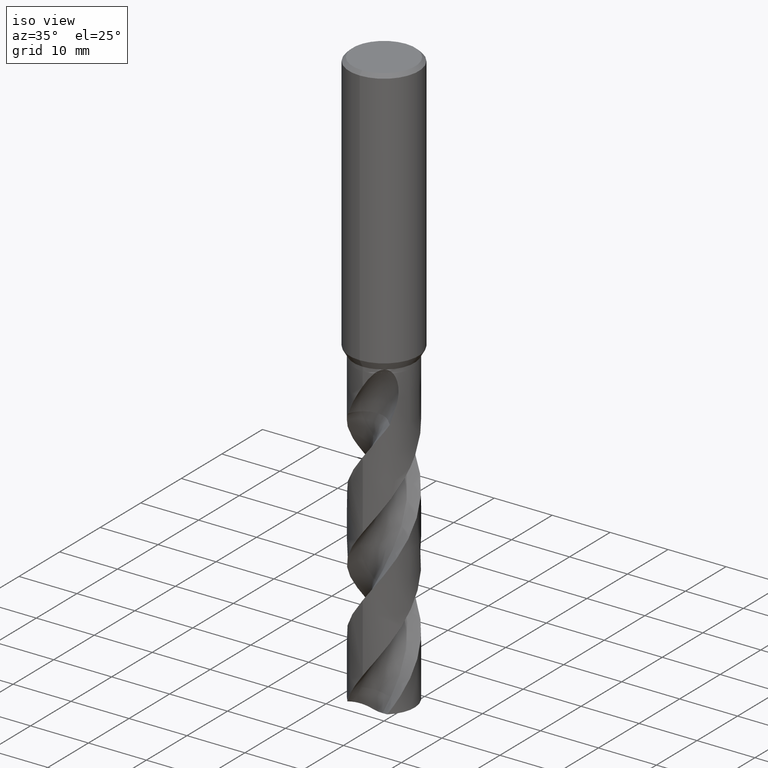
[diagram: clean part render]
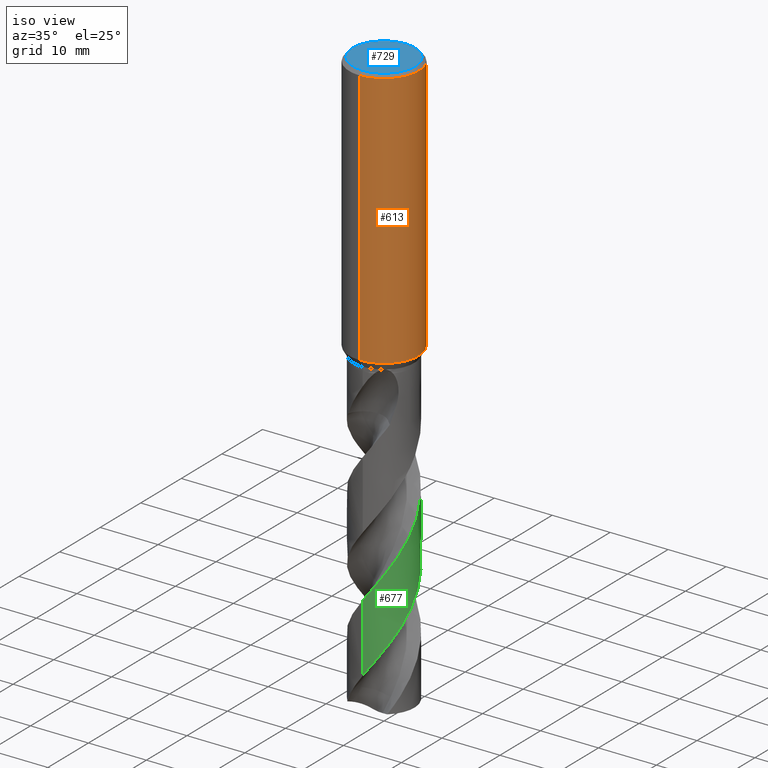
[diagram: same view with three faces highlighted in distinct colors, each labeled with its STEP entity id]
A machine part, iso view with three faces highlighted in distinct colors.
Their STEP definitions:

[orange] entity #613 — the highlighted cylindrical surface (partial cylindrical patch) has radius 6 mm, axis along (-0, -0, 1).
#285=EDGE_CURVE('',#431,#633,#800,.T.);
#293=EDGE_CURVE('',#571,#755,#808,.T.);
#331=EDGE_CURVE('',#363,#461,#848,.T.);
#347=VERTEX_POINT('',#864);
#363=VERTEX_POINT('',#880);
#365=EDGE_CURVE('',#633,#571,#882,.T.);
#371=VERTEX_POINT('',#889);
#407=VERTEX_POINT('',#931);
#417=EDGE_CURVE('',#433,#723,#942,.T.);
#425=EDGE_CURVE('',#753,#755,#951,.T.);
#431=VERTEX_POINT('',#957);
#433=VERTEX_POINT('',#959);
#445=EDGE_CURVE('',#431,#347,#971,.T.);
#461=VERTEX_POINT('',#988);
#543=EDGE_CURVE('',#347,#363,#1080,.T.);
#571=VERTEX_POINT('',#1113);
#613=ADVANCED_FACE('',(#1156),#1157,.T.);
#633=VERTEX_POINT('',#1180);
#647=EDGE_CURVE('',#723,#371,#1195,.T.);
#661=EDGE_CURVE('',#407,#433,#1210,.T.);
#703=EDGE_CURVE('',#461,#407,#1255,.T.);
#723=VERTEX_POINT('',#1278);
#741=EDGE_CURVE('',#753,#371,#1298,.T.);
#753=VERTEX_POINT('',#1313);
#755=VERTEX_POINT('',#1315);
#800=LINE('',#1370,#1371);
#808=LINE('',#1400,#1401);
#848=LINE('',#1632,#1633);
#864=CARTESIAN_POINT('',(0.29010312703583,5.99298257762227,-42.9998328990228));
#880=CARTESIAN_POINT('',(0.873560781758957,5.93606701112552,-41.3198931596091));
#882=CIRCLE('',#1857,6.0);
#889=CARTESIAN_POINT('',(4.30282158127811E-015,6.0,-41.0232688117743));
#931=CARTESIAN_POINT('',(1.33721006514658,5.84909131760402,-42.2901657003257));
#942=B_SPLINE_CURVE_WITH_KNOTS('',3,(#2528,#2529,#2530,#2531,#2532,#2533,#2534,#2535,#2536,#2537),.UNSPECIFIED.,.F.,.F.,(4,2,2,2,4),(0.616864768993534,0.925297153490302,1.23372953798707,1.54196894672892,1.85020835547076),.UNSPECIFIED.);
#951=CIRCLE('',#2556,6.0);
#957=CARTESIAN_POINT('',(-1.000126236349E-015,6.0,-43.0310253601033));
#959=CARTESIAN_POINT('',(1.33721006514658,5.84909131760402,-40.5150484364821));
#971=B_SPLINE_CURVE_WITH_KNOTS('',3,(#2599,#2600,#2601,#2602,#2603,#2604,#2605,#2606,#2607,#2608,#2609,#2610,#2611,#2612,#2613,#2614),.UNSPECIFIED.,.F.,.F.,(4,2,2,2,2,2,2,4),(5.86022917063912,6.16870405720903,6.47725847293827,6.78581288866751,7.09436730439676,7.402921720126,7.71116114554584,8.01940057096568),.UNSPECIFIED.);
#988=CARTESIAN_POINT('',(0.873560781758956,5.93606701112552,-42.7587351791531));
#1080=ELLIPSE('',#3027,18.2879674402186,6.0);
#1113=CARTESIAN_POINT('',(7.34763812293426E-016,-6.0,-45.0));
#1156=FACE_OUTER_BOUND('',#3370,.T.);
#1157=CYLINDRICAL_SURFACE('',#3371,6.0);
#1180=CARTESIAN_POINT('',(0.0,6.0,-45.0));
#1195=B_SPLINE_CURVE_WITH_KNOTS('',3,(#3539,#3540,#3541,#3542,#3543,#3544,#3545,#3546,#3547,#3548,#3549,#3550,#3551,#3552,#3553,#3554,#3555,#3556,#3557,#3558,#3559,#3560,#3561,#3562,#3563,#3564,#3565),.UNSPECIFIED.,.F.,.F.,(4,2,3,2,2,2,2,2,2,2,2,2,4),(-0.542204134993822,-0.271102067496911,0.0,0.271102067496911,0.542204134993821,0.813702489471782,1.08520084394974,1.35603748887758,1.62687413380543,1.89790609484719,2.16893805588896,2.43997001693073,2.71100197797249),.UNSPECIFIED.);
#1210=LINE('',#3584,#3585);
#1255=B_SPLINE_CURVE_WITH_KNOTS('',3,(#3854,#3855,#3856,#3857,#3858,#3859,#3860,#3861,#3862,#3863),.UNSPECIFIED.,.F.,.F.,(4,2,2,2,4),(8.01939987363182,8.32763927191416,8.6358786701965,8.94431104401671,9.25274341783691),.UNSPECIFIED.);
#1278=CARTESIAN_POINT('',(0.799431726384364,5.94650392372275,-40.000000276873));
#1298=LINE('',#3976,#3977);
#1313=CARTESIAN_POINT('',(0.0,6.0,-0.600000000000001));
#1315=CARTESIAN_POINT('',(7.34763812293426E-016,-6.0,-0.600000000000001));
#1370=CARTESIAN_POINT('',(-7.34763812293426E-016,6.0,-22.8));
#1371=VECTOR('',#5356,1.0);
#1400=CARTESIAN_POINT('',(7.34763812293426E-016,-6.0,-22.8));
#1401=VECTOR('',#5357,1.0);
#1632=CARTESIAN_POINT('',(0.873560781758957,5.93606701112552,-42.0393141693811));
#1633=VECTOR('',#5402,1.0);
#1857=AXIS2_PLACEMENT_3D('',#5414,#5415,#5416);
#2528=CARTESIAN_POINT('',(1.47572255922527,5.81568937686614,-40.7778857706544));
#2529=CARTESIAN_POINT('',(1.43408414695966,5.82625505721574,-40.6776366099009));
#2530=CARTESIAN_POINT('',(1.38231447896357,5.83891732292942,-40.5816487554591));
#2531=CARTESIAN_POINT('',(1.26287133719122,5.86591039891312,-40.404259737123));
#2532=CARTESIAN_POINT('',(1.19518872778899,5.88021296420216,-40.3228604278537));
#2533=CARTESIAN_POINT('',(1.05112183874896,5.90766593069519,-40.1788296843787));
#2534=CARTESIAN_POINT('',(0.969743089830991,5.92179330445672,-40.111188656323));
#2535=CARTESIAN_POINT('',(0.792381475667972,5.94812316600191,-39.9918074082397));
#2536=CARTESIAN_POINT('',(0.696400454612605,5.96029984760923,-39.9400587582751));
#2537=CARTESIAN_POINT('',(0.596162331669374,5.97030907694891,-39.8984402290046));
#2556=AXIS2_PLACEMENT_3D('',#5500,#5501,#5502);
#2599=CARTESIAN_POINT('',(-1.37942962388976,5.83927854385585,-42.3120938518854));
#2600=CARTESIAN_POINT('',(-1.3197524098915,5.85337626434356,-42.4007460556891));
#2601=CARTESIAN_POINT('',(-1.25213007147997,5.86835238153676,-42.4821006164436));
#2602=CARTESIAN_POINT('',(-1.10815476297052,5.89723538536299,-42.6261133873133));
#2603=CARTESIAN_POINT('',(-1.02679168998259,5.91217036370492,-42.6937759496578));
#2604=CARTESIAN_POINT('',(-0.849449577088966,5.94024368186983,-42.8132077327803));
#2605=CARTESIAN_POINT('',(-0.75347222810614,5.95335623661259,-42.8649855238005));
#2606=CARTESIAN_POINT('',(-0.552969605024409,5.97531551411668,-42.9482857310807));
#2607=CARTESIAN_POINT('',(-0.448275455975639,5.98416266823847,-42.9798740542996));
#2608=CARTESIAN_POINT('',(-0.237398161173605,5.99623180317797,-43.0213727490831));
#2609=CARTESIAN_POINT('',(-0.131212492151728,5.9994467834274,-43.0312723335086));
#2610=CARTESIAN_POINT('',(0.0743831578630581,6.00041865072596,-43.0312723335086));
#2611=CARTESIAN_POINT('',(0.180490238104753,5.99821260764714,-43.021392590677));
#2612=CARTESIAN_POINT('',(0.391259717323761,5.98815890288379,-42.9799476485545));
#2613=CARTESIAN_POINT('',(0.495924498667214,5.98031828233743,-42.948392857806));
#2614=CARTESIAN_POINT('',(0.596162626581452,5.9703090475006,-42.9067743263419));
#3027=AXIS2_PLACEMENT_3D('',#5645,#5646,#5647);
#3370=EDGE_LOOP('',(#5745,#5746,#5747,#5748,#5749,#5750,#5751,#5752,#5753,#5754,#5755,#5756));
#3371=AXIS2_PLACEMENT_3D('',#5757,#5758,#5759);
#3539=CARTESIAN_POINT('',(0.665038279511986,5.96302977409838,-39.8135117776465));
#3540=CARTESIAN_POINT('',(0.728716101835783,5.95592798339707,-39.8772374280006));
#3541=CARTESIAN_POINT('',(0.783974665019777,5.94867668154847,-39.9579557273851));
#3542=CARTESIAN_POINT('',(0.857320507570535,5.93854966257537,-40.1349694534753));
#3543=CARTESIAN_POINT('',(0.875400981188567,5.93579591311343,-40.2312746567545));
#3544=CARTESIAN_POINT('',(0.875400981188567,5.93579591311343,-40.3216420125868));
#3545=CARTESIAN_POINT('',(0.875400981188567,5.93579591311343,-40.4120093684191));
#3546=CARTESIAN_POINT('',(0.857320507570535,5.93854966257537,-40.5083145716983));
#3547=CARTESIAN_POINT('',(0.783974665019777,5.94867668154847,-40.6853282977885));
#3548=CARTESIAN_POINT('',(0.728716101835784,5.95592798339707,-40.766046597173));
#3549=CARTESIAN_POINT('',(0.601267375301349,5.97014194593481,-40.8935910496813));
#3550=CARTESIAN_POINT('',(0.52050089626908,5.97804010501944,-40.9489349030958));
#3551=CARTESIAN_POINT('',(0.343370231624616,5.99082478161003,-41.0224010244896));
#3552=CARTESIAN_POINT('',(0.246995041657254,5.9955970178221,-41.0405166027747));
#3553=CARTESIAN_POINT('',(0.066278235124748,6.00031311449822,-41.0405166027747));
#3554=CARTESIAN_POINT('',(-0.0299950498794653,6.00057849353559,-41.0224799292738));
#3555=CARTESIAN_POINT('',(-0.207070170783241,5.99707961466003,-40.949146253936));
#3556=CARTESIAN_POINT('',(-0.287875322309355,5.99343072940708,-40.8938517989794));
#3557=CARTESIAN_POINT('',(-0.415515670858363,5.98593657913032,-40.7662728045656));
#3558=CARTESIAN_POINT('',(-0.470860335647626,5.98160913098325,-40.6854535363062));
#3559=CARTESIAN_POINT('',(-0.544278095376138,5.97537602271911,-40.5083128294691));
#3560=CARTESIAN_POINT('',(-0.562348199187247,5.97358891311336,-40.4119859996007));
#3561=CARTESIAN_POINT('',(-0.562348199187247,5.97358891311336,-40.2312980255729));
#3562=CARTESIAN_POINT('',(-0.544278095376141,5.97537602271911,-40.1349711957045));
#3563=CARTESIAN_POINT('',(-0.470860335647634,5.98160913098325,-39.9578304888674));
#3564=CARTESIAN_POINT('',(-0.415515670858364,5.98593657913032,-39.8770112206079));
#3565=CARTESIAN_POINT('',(-0.351672492652108,5.98968500489899,-39.8131987305268));
#3584=CARTESIAN_POINT('',(1.33721006514658,5.84909131760402,-41.4026070684039));
#3585=VECTOR('',#5826,1.0);
#3854=CARTESIAN_POINT('',(0.596162353925366,5.97030907472655,-42.9067738917094));
#3855=CARTESIAN_POINT('',(0.696400473442532,5.96029984535159,-42.865155363849));
#3856=CARTESIAN_POINT('',(0.792381491214139,5.94812316388512,-42.8134067156396));
#3857=CARTESIAN_POINT('',(0.969743099309515,5.92179330285852,-42.6940254716034));
#3858=CARTESIAN_POINT('',(1.05112184544356,5.90766592947307,-42.6263844458399));
#3859=CARTESIAN_POINT('',(1.19518872950838,5.8802129638209,-42.4823537072831));
#3860=CARTESIAN_POINT('',(1.26287133655555,5.86591039902768,-42.4009544008203));
#3861=CARTESIAN_POINT('',(1.38231447417469,5.83891732404075,-42.2235653885997));
#3862=CARTESIAN_POINT('',(1.43408414037219,5.82625505882607,-42.1275775374671));
#3863=CARTESIAN_POINT('',(1.47572255119055,5.81568937890493,-42.0273283801715));
#3976=CARTESIAN_POINT('',(-7.34763812293426E-016,6.0,-22.8));
#3977=VECTOR('',#5915,1.0);
#5356=DIRECTION('',(0.0,0.0,-1.0));
#5357=DIRECTION('',(-0.0,-0.0,1.0));
#5402=DIRECTION('',(0.0,0.0,-1.0));
#5414=CARTESIAN_POINT('',(0.0,0.0,-45.0));
#5415=DIRECTION('',(0.0,0.0,-1.0));
#5416=DIRECTION('',(0.0,1.0,0.0));
#5500=CARTESIAN_POINT('',(0.0,0.0,-0.600000000000001));
#5501=DIRECTION('',(0.0,0.0,-1.0));
#5502=DIRECTION('',(0.0,1.0,0.0));
#5645=CARTESIAN_POINT('',(0.0,0.0,-43.8351219173269));
#5646=DIRECTION('',(0.944648353914092,0.0,-0.328084573619969));
#5647=DIRECTION('',(0.328084573619969,-0.0,0.944648353914092));
#5745=ORIENTED_EDGE('',*,*,#741,.F.);
#5746=ORIENTED_EDGE('',*,*,#425,.T.);
#5747=ORIENTED_EDGE('',*,*,#293,.F.);
#5748=ORIENTED_EDGE('',*,*,#365,.F.);
#5749=ORIENTED_EDGE('',*,*,#285,.F.);
#5750=ORIENTED_EDGE('',*,*,#445,.T.);
#5751=ORIENTED_EDGE('',*,*,#543,.T.);
#5752=ORIENTED_EDGE('',*,*,#331,.T.);
#5753=ORIENTED_EDGE('',*,*,#703,.T.);
#5754=ORIENTED_EDGE('',*,*,#661,.T.);
#5755=ORIENTED_EDGE('',*,*,#417,.T.);
#5756=ORIENTED_EDGE('',*,*,#647,.T.);
#5757=CARTESIAN_POINT('',(0.0,0.0,-22.8));
#5758=DIRECTION('',(-0.0,-0.0,1.0));
#5759=DIRECTION('',(0.0,1.0,0.0));
#5826=DIRECTION('',(-0.0,-0.0,1.0));
#5915=DIRECTION('',(0.0,0.0,-1.0));

[blue] entity #729 — the highlighted planar face has unit normal (-0, 0, 1).
#307=EDGE_CURVE('',#663,#321,#822,.T.);
#319=EDGE_CURVE('',#321,#663,#834,.T.);
#321=VERTEX_POINT('',#836);
#663=VERTEX_POINT('',#1212);
#729=ADVANCED_FACE('',(#1285),#1286,.T.);
#822=CIRCLE('',#1504,5.4);
#834=CIRCLE('',#1536,5.4);
#836=CARTESIAN_POINT('',(6.61287431064084E-016,-5.4,0.0));
#1212=CARTESIAN_POINT('',(0.0,5.4,0.0));
#1285=FACE_OUTER_BOUND('',#3945,.T.);
#1286=PLANE('',#3946);
#1504=AXIS2_PLACEMENT_3D('',#5358,#5359,#5360);
#1536=AXIS2_PLACEMENT_3D('',#5365,#5366,#5367);
#3945=EDGE_LOOP('',(#5906,#5907));
#3946=AXIS2_PLACEMENT_3D('',#5908,#5909,#5910);
#5358=CARTESIAN_POINT('',(0.0,0.0,0.0));
#5359=DIRECTION('',(0.0,0.0,-1.0));
#5360=DIRECTION('',(0.0,1.0,0.0));
#5365=CARTESIAN_POINT('',(0.0,0.0,0.0));
#5366=DIRECTION('',(0.0,0.0,-1.0));
#5367=DIRECTION('',(0.0,1.0,0.0));
#5906=ORIENTED_EDGE('',*,*,#307,.F.);
#5907=ORIENTED_EDGE('',*,*,#319,.F.);
#5908=CARTESIAN_POINT('',(0.0,2.7,0.0));
#5909=DIRECTION('',(-0.0,0.0,1.0));
#5910=DIRECTION('',(0.0,-1.0,0.0));

[green] entity #677 — the highlighted conical surface has half-angle 0 deg.
#329=EDGE_CURVE('',#517,#505,#846,.T.);
#427=VERTEX_POINT('',#953);
#457=EDGE_CURVE('',#427,#505,#984,.T.);
#505=VERTEX_POINT('',#1036);
#517=VERTEX_POINT('',#1050);
#547=EDGE_CURVE('',#517,#669,#1084,.T.);
#669=VERTEX_POINT('',#1218);
#677=ADVANCED_FACE('',(#1226),#1227,.T.);
#683=EDGE_CURVE('',#427,#669,#1233,.T.);
#846=B_SPLINE_CURVE_WITH_KNOTS('',3,(#1550,#1551,#1552,#1553,#1554,#1555,#1556,#1557,#1558,#1559,#1560,#1561,#1562,#1563,#1564,#1565,#1566,#1567,#1568,#1569,#1570,#1571,#1572,#1573,#1574,#1575,#1576,#1577,#1578,#1579,#1580,#1581,#1582,#1583,#1584,#1585,#1586,#1587,#1588,#1589,#1590,#1591,#1592,#1593,#1594,#1595,#1596,#1597,#1598,#1599,#1600,#1601,#1602,#1603,#1604,#1605,#1606,#1607,#1608,#1609,#1610,#1611,#1612,#1613,#1614,#1615,#1616,#1617,#1618,#1619,#1620,#1621,#1622,#1623,#1624,#1625,#1626,#1627,#1628,#1629),.UNSPECIFIED.,.F.,.F.,(4,2,2,2,2,2,2,2,2,2,2,2,2,2,2,2,2,2,2,2,2,2,2,2,2,2,2,2,2,2,2,2,2,2,2,2,2,2,2,4),(0.0,1.55283168259454,4.42357626546534,5.53416940220396,8.49781060848736,8.85510769839194,11.6642792355906,12.8619158530255,15.7445482964796,16.4586824080384,19.3412350320524,19.991186099465,22.882861930393,23.9390301321957,26.8275791020106,27.5429615799312,30.4305916618688,31.0830933109896,33.9787821000602,35.0688289210141,36.6737178038958,38.1260137318522,38.1708728443438,40.6683231910501,43.5585603710858,44.8731053328471,46.3125907684013,46.9140599268263,48.0454198723257,50.0349796865525,52.8407415146857,52.886512737987,53.6082812176403,54.3790207794298,54.5513846646305,54.9634986082932,55.1278093974802,55.3236824134384,55.6892813591893,56.4913873253493),.UNSPECIFIED.);
#953=CARTESIAN_POINT('',(3.98360292296817E-012,5.24992526825898,-60.4147054853088));
#984=LINE('',#2704,#2705);
#1036=CARTESIAN_POINT('',(-3.27398922719304E-014,5.24994741629352,-72.1729101675563));
#1050=CARTESIAN_POINT('',(-1.81467106613997E-012,-5.24998945088408,-94.4887196337318));
#1084=LINE('',#3032,#3033);
#1218=CARTESIAN_POINT('',(2.72836154926986E-012,-5.24996729984524,-82.7289200116244));
#1226=FACE_OUTER_BOUND('',#3635,.T.);
#1227=CONICAL_SURFACE('',#3636,5.24995,1.88362383253705E-006);
#1233=B_SPLINE_CURVE_WITH_KNOTS('',3,(#3657,#3658,#3659,#3660,#3661,#3662,#3663,#3664,#3665,#3666,#3667,#3668,#3669,#3670,#3671,#3672,#3673,#3674,#3675,#3676,#3677,#3678,#3679,#3680,#3681,#3682,#3683,#3684,#3685,#3686,#3687,#3688,#3689,#3690,#3691,#3692,#3693,#3694,#3695,#3696,#3697,#3698,#3699,#3700,#3701,#3702,#3703,#3704,#3705,#3706,#3707,#3708,#3709,#3710,#3711,#3712,#3713,#3714,#3715,#3716,#3717,#3718,#3719,#3720,#3721,#3722,#3723,#3724,#3725,#3726,#3727,#3728,#3729,#3730,#3731,#3732,#3733,#3734,#3735,#3736,#3737,#3738,#3739,#3740,#3741,#3742,#3743,#3744,#3745,#3746,#3747,#3748,#3749,#3750),.UNSPECIFIED.,.F.,.F.,(4,2,2,2,2,2,2,2,2,2,2,2,2,2,2,2,2,2,2,2,2,2,2,2,2,2,2,2,2,2,2,2,2,2,2,2,2,2,2,2,2,2,2,2,2,2,4),(0.0,0.218900907733007,0.355971588650264,0.432761158952666,1.00729394272988,1.20911081673772,1.33857883977056,1.46038259739679,1.62395895318792,1.80589942300578,1.8526584396365,2.5335976191504,2.98512956000297,3.43931026908279,3.92448192748065,5.25004072643065,5.86105946315065,8.60029341934533,8.95952700578667,9.31615504883598,10.751008260448,11.1055741776473,13.0102353186605,15.9002888288247,17.1059275293211,19.9661103259575,21.4090782719569,22.5415575474602,24.9588343199545,26.1224938529334,28.4067789011938,29.824062327178,32.204168807687,33.6909898064541,36.307277668272,36.7989840527583,38.6760900314306,40.121401822694,40.236382539683,43.5277732717173,44.0373212848597,45.8357752552997,48.3857974960422,50.281109758101,51.7100861150398,53.8611029458004,56.0238416263987),.UNSPECIFIED.);
#1550=CARTESIAN_POINT('',(-3.72328096844918,-3.70130771889938,-100.089156270102));
#1551=CARTESIAN_POINT('',(-3.50694865496079,-3.91892320093883,-99.6723055476173));
#1552=CARTESIAN_POINT('',(-3.27178257353401,-4.11730368252162,-99.256184491373));
#1553=CARTESIAN_POINT('',(-2.55641534509363,-4.62053922808692,-98.0709418343404));
#1554=CARTESIAN_POINT('',(-2.0426155766559,-4.86948750253922,-97.3171247419112));
#1555=CARTESIAN_POINT('',(-1.28870077251985,-5.09409736464993,-96.2512465839984));
#1556=CARTESIAN_POINT('',(-1.07517604137454,-5.14338606724219,-95.9523312458842));
#1557=CARTESIAN_POINT('',(-0.282229108789621,-5.27490201520784,-94.8616613478142));
#1558=CARTESIAN_POINT('',(0.305773385624763,-5.27346713943181,-94.0849890582356));
#1559=CARTESIAN_POINT('',(0.950440490764781,-5.16371733049515,-93.1960703477832));
#1560=CARTESIAN_POINT('',(1.01947123250923,-5.15053435610854,-93.1003440062924));
#1561=CARTESIAN_POINT('',(1.63030193280169,-5.02108665059044,-92.2518397041837));
#1562=CARTESIAN_POINT('',(2.15090816512759,-4.82119225190339,-91.5132296375117));
#1563=CARTESIAN_POINT('',(2.83586828668687,-4.42449277674893,-90.4420234694063));
#1564=CARTESIAN_POINT('',(3.03193188812343,-4.29248339496923,-90.1201599803857));
#1565=CARTESIAN_POINT('',(3.6673108822494,-3.79946407430955,-89.0295394815214));
#1566=CARTESIAN_POINT('',(4.05621501121183,-3.38100363107341,-88.2742910399438));
#1567=CARTESIAN_POINT('',(4.44837576447634,-2.79176473526083,-87.3131000887591));
#1568=CARTESIAN_POINT('',(4.52144940454883,-2.67180884827898,-87.1217149740394));
#1569=CARTESIAN_POINT('',(4.86570233079006,-2.05186463393643,-86.1595403663949));
#1570=CARTESIAN_POINT('',(5.05894411817027,-1.5138717563897,-85.4036866177896));
#1571=CARTESIAN_POINT('',(5.18560010166432,-0.829541504352276,-84.4594009858077));
#1572=CARTESIAN_POINT('',(5.2042471455195,-0.703091391750399,-84.285202732164));
#1573=CARTESIAN_POINT('',(5.28066836782607,-0.0107866994223819,-83.3390047063921));
#1574=CARTESIAN_POINT('',(5.25085933262517,0.560858050900876,-82.5818266793023));
#1575=CARTESIAN_POINT('',(5.08553759192692,1.32009617858223,-81.528967988177));
#1576=CARTESIAN_POINT('',(5.02938521960734,1.52005535718833,-81.2460139680815));
#1577=CARTESIAN_POINT('',(4.77571628381148,2.2533189078108,-80.1939809263232));
#1578=CARTESIAN_POINT('',(4.50428953273375,2.75592559442476,-79.4388270795257));
#1579=CARTESIAN_POINT('',(4.0722898740351,3.31636202392358,-78.4777413870751));
#1580=CARTESIAN_POINT('',(3.98217895650476,3.4240533121824,-78.2864249983892));
#1581=CARTESIAN_POINT('',(3.50562968213206,3.94912227006151,-77.324362890783));
#1582=CARTESIAN_POINT('',(3.05822178154104,4.30484869706049,-76.5685959549248));
#1583=CARTESIAN_POINT('',(2.45067177352102,4.64464057928539,-75.6239666697643));
#1584=CARTESIAN_POINT('',(2.33666903546506,4.70302117273316,-75.4494009412483));
#1585=CARTESIAN_POINT('',(1.70530639519933,4.99772531318835,-74.5029780302499));
#1586=CARTESIAN_POINT('',(1.15444092001456,5.15296175840761,-73.7459806837534));
#1587=CARTESIAN_POINT('',(0.376182116282807,5.24083246672806,-72.6846371602285));
#1588=CARTESIAN_POINT('',(0.16240374556267,5.25180416333655,-72.3930346769591));
#1589=CARTESIAN_POINT('',(-0.367070912451738,5.2465825898381,-71.6753137295766));
#1590=CARTESIAN_POINT('',(-0.681917763852814,5.21507214462555,-71.2506991661853));
#1591=CARTESIAN_POINT('',(-1.27361919216938,5.10115130061989,-70.4381502414181));
#1592=CARTESIAN_POINT('',(-1.54892890565863,5.02430601438695,-70.0536204489383));
#1593=CARTESIAN_POINT('',(-1.82408972058166,4.92287232860812,-69.6543303380844));
#1594=CARTESIAN_POINT('',(-1.83231604596431,4.91981638029251,-69.6423784711305));
#1595=CARTESIAN_POINT('',(-2.29951539772919,4.74492066757987,-68.9631845235388));
#1596=CARTESIAN_POINT('',(-2.73311634460861,4.50937820157399,-68.3059676674335));
#1597=CARTESIAN_POINT('',(-3.58628710479701,3.87623855424795,-66.8721304790389));
#1598=CARTESIAN_POINT('',(-3.98550600377261,3.46449810328575,-66.0992698043365));
#1599=CARTESIAN_POINT('',(-4.4589756094267,2.78327316278227,-64.980685062898));
#1600=CARTESIAN_POINT('',(-4.59089576615485,2.55979008312377,-64.632312722918));
#1601=CARTESIAN_POINT('',(-4.83142267766327,2.07353343113436,-63.8990681206454));
#1602=CARTESIAN_POINT('',(-4.93619710476307,1.80994538010295,-63.5141079993371));
#1603=CARTESIAN_POINT('',(-5.05389729760698,1.42614311767012,-62.9705987422274));
#1604=CARTESIAN_POINT('',(-5.08475773682793,1.31187265595017,-62.8105837859164));
#1605=CARTESIAN_POINT('',(-5.16247879470687,0.979862205820012,-62.3492451661076));
#1606=CARTESIAN_POINT('',(-5.19939623396603,0.760031566846202,-62.0478796684582));
#1607=CARTESIAN_POINT('',(-5.26241880420548,0.14877883124267,-61.217145352013));
#1608=CARTESIAN_POINT('',(-5.25883820525313,-0.244026838317106,-60.6899035343629));
#1609=CARTESIAN_POINT('',(-5.14515906384193,-1.18056365996501,-59.4139539865779));
#1610=CARTESIAN_POINT('',(-4.9921009055749,-1.72071690977568,-58.6487101854425));
#1611=CARTESIAN_POINT('',(-4.74747933126276,-2.24124757394487,-57.8935921188496));
#1612=CARTESIAN_POINT('',(-4.74363142000007,-2.24937982414721,-57.8817936094091));
#1613=CARTESIAN_POINT('',(-4.67776984594474,-2.38765004810517,-57.6807333844253));
#1614=CARTESIAN_POINT('',(-4.6113130411068,-2.51338016955247,-57.4916700653642));
#1615=CARTESIAN_POINT('',(-4.46592074149185,-2.76398011566601,-57.0950579818951));
#1616=CARTESIAN_POINT('',(-4.38721315161969,-2.88689097364073,-56.8891933021354));
#1617=CARTESIAN_POINT('',(-4.28788983856758,-3.02929829254719,-56.6319290217737));
#1618=CARTESIAN_POINT('',(-4.26964361462898,-3.05495643997895,-56.5847673446125));
#1619=CARTESIAN_POINT('',(-4.2074918189835,-3.14073681062753,-56.4242127874676));
#1620=CARTESIAN_POINT('',(-4.17372758811211,-3.18577676283055,-56.3345711893508));
#1621=CARTESIAN_POINT('',(-4.09844503953779,-3.28109404992842,-56.1599432336264));
#1622=CARTESIAN_POINT('',(-4.07635828068138,-3.30850681857003,-56.1106270695393));
#1623=CARTESIAN_POINT('',(-4.02644238347697,-3.3691563447211,-56.0034118655196));
#1624=CARTESIAN_POINT('',(-3.99837476637681,-3.40244013522676,-55.9457904985956));
#1625=CARTESIAN_POINT('',(-3.91504702844078,-3.49870020309846,-55.7823530109607));
#1626=CARTESIAN_POINT('',(-3.85753638322087,-3.562144620324,-55.6785050712212));
#1627=CARTESIAN_POINT('',(-3.66220505486614,-3.76664367873765,-55.3535510930191));
#1628=CARTESIAN_POINT('',(-3.5125293838664,-3.90778774458861,-55.1439330079438));
#1629=CARTESIAN_POINT('',(-3.34534853535632,-4.04601659429047,-54.943));
#2704=CARTESIAN_POINT('',(-6.42760222153963E-016,5.24995,-73.5445781350512));
#2705=VECTOR('',#5519,1.0);
#3032=CARTESIAN_POINT('',(6.43064203295995E-016,-5.24995,-73.5445781350512));
#3033=VECTOR('',#5648,1.0);
#3635=EDGE_LOOP('',(#5828,#5829,#5830,#5831));
#3636=AXIS2_PLACEMENT_3D('',#5832,#5833,#5834);
#3657=CARTESIAN_POINT('',(-3.64909590896184,3.77434844065602,-54.943));
#3658=CARTESIAN_POINT('',(-3.61929948767477,3.80315621889755,-55.0030538407762));
#3659=CARTESIAN_POINT('',(-3.58908252365148,3.83168927574042,-55.0630553335162));
#3660=CARTESIAN_POINT('',(-3.53911373707491,3.87775324057432,-55.1604911610518));
#3661=CARTESIAN_POINT('',(-3.51969603104453,3.89538777251678,-55.1979324140291));
#3662=CARTESIAN_POINT('',(-3.48906329480541,3.92278834546992,-55.2562915176481));
#3663=CARTESIAN_POINT('',(-3.47800404875347,3.93259724656328,-55.2772202189181));
#3664=CARTESIAN_POINT('',(-3.38362659816744,4.01559193547244,-55.4545990934107));
#3665=CARTESIAN_POINT('',(-3.29825963565124,4.08608776791284,-55.6069022350809));
#3666=CARTESIAN_POINT('',(-3.17625540275734,4.18026688530081,-55.8143213887134));
#3667=CARTESIAN_POINT('',(-3.14416519373107,4.20445970337173,-55.8680052713006));
#3668=CARTESIAN_POINT('',(-3.09077493614754,4.24374935127319,-55.9560843307261));
#3669=CARTESIAN_POINT('',(-3.0697635497289,4.25897353438222,-55.9904416003856));
#3670=CARTESIAN_POINT('',(-3.02868242415743,4.28827590567067,-56.057099737349));
#3671=CARTESIAN_POINT('',(-3.00865033882526,4.30235444580527,-56.0893699084209));
#3672=CARTESIAN_POINT('',(-2.96143212554323,4.33504725475963,-56.1649743588715));
#3673=CARTESIAN_POINT('',(-2.93418312791254,4.35353721857531,-56.2082520010391));
#3674=CARTESIAN_POINT('',(-2.87624950636346,4.39205700973501,-56.2997314563363));
#3675=CARTESIAN_POINT('',(-2.84557107423099,4.41199445243416,-56.3478641947908));
#3676=CARTESIAN_POINT('',(-2.80680377227609,4.43661772548717,-56.4084888271664));
#3677=CARTESIAN_POINT('',(-2.79890619401076,4.44160438580677,-56.4208306876762));
#3678=CARTESIAN_POINT('',(-2.67450350359459,4.51968590161639,-56.6152232430163));
#3679=CARTESIAN_POINT('',(-2.55608640132008,4.58763264566234,-56.799487286253));
#3680=CARTESIAN_POINT('',(-2.35675835302862,4.69205601661246,-57.1051952102065));
#3681=CARTESIAN_POINT('',(-2.27630715542816,4.73160621346397,-57.2274351509126));
#3682=CARTESIAN_POINT('',(-2.11313362249606,4.8067075138466,-57.4723206154607));
#3683=CARTESIAN_POINT('',(-2.03023037624923,4.84231219213567,-57.5952214085366));
#3684=CARTESIAN_POINT('',(-1.85668093827981,4.91158993527185,-57.8488750547625));
#3685=CARTESIAN_POINT('',(-1.76631808446371,4.94480617500988,-57.9788426658841));
#3686=CARTESIAN_POINT('',(-1.42483306597777,5.05975312458922,-58.4652332558027));
#3687=CARTESIAN_POINT('',(-1.1690392942064,5.12488231750436,-58.8194972433035));
#3688=CARTESIAN_POINT('',(-0.790022034794075,5.19156070469673,-59.3401253739892));
#3689=CARTESIAN_POINT('',(-0.66986009619093,5.20842303781896,-59.5046425503116));
#3690=CARTESIAN_POINT('',(-0.00904409493264857,5.27795276568347,-60.4056420691071));
#3691=CARTESIAN_POINT('',(0.537203504039976,5.25063270977056,-61.1353764291841));
#3692=CARTESIAN_POINT('',(1.13970077924406,5.12522380230368,-61.9679696504112));
#3693=CARTESIAN_POINT('',(1.20924295114804,5.10926297847584,-62.0644932485685));
#3694=CARTESIAN_POINT('',(1.34711735154287,5.07464696248866,-62.2568750145948));
#3695=CARTESIAN_POINT('',(1.41544346977101,5.05601497692598,-62.352724053276));
#3696=CARTESIAN_POINT('',(1.75665423078369,4.95551149505255,-62.834191292153));
#3697=CARTESIAN_POINT('',(2.02301728395983,4.85287914047549,-63.2190741290185));
#3698=CARTESIAN_POINT('',(2.34325923920313,4.6984974909184,-63.6998208636908));
#3699=CARTESIAN_POINT('',(2.40607653985117,4.66664093509554,-63.7950315627142));
#3700=CARTESIAN_POINT('',(2.80212835418108,4.4556695719022,-64.4021864330598));
#3701=CARTESIAN_POINT('',(3.11591341914442,4.24218207293702,-64.9137165657249));
#3702=CARTESIAN_POINT('',(3.84119688997788,3.62447025076603,-66.2023305884222));
#3703=CARTESIAN_POINT('',(4.21415737393959,3.18306219653668,-66.9727841313747));
#3704=CARTESIAN_POINT('',(4.63082586802766,2.48487474524726,-68.0740498210227));
#3705=CARTESIAN_POINT('',(4.73935032856651,2.27108919760572,-68.3977877175495));
#3706=CARTESIAN_POINT('',(5.05496095871106,1.52721724609669,-69.4903418170897));
#3707=CARTESIAN_POINT('',(5.19045667986347,0.971467352299722,-70.2542564897905));
#3708=CARTESIAN_POINT('',(5.25640648009845,0.119385194887019,-71.411084702624));
#3709=CARTESIAN_POINT('',(5.25509993120293,-0.167812190802243,-71.7980251812815));
#3710=CARTESIAN_POINT('',(5.21086133501694,-0.677914864087361,-72.4899736932671));
#3711=CARTESIAN_POINT('',(5.17701563716022,-0.900572239770127,-72.7938315006289));
#3712=CARTESIAN_POINT('',(5.02662114450235,-1.58915696073045,-73.7483422108489));
#3713=CARTESIAN_POINT('',(4.86030241638067,-2.04217200036389,-74.3956313114365));
#3714=CARTESIAN_POINT('',(4.52579384188653,-2.67071824949438,-75.3578526358229));
#3715=CARTESIAN_POINT('',(4.40378600036873,-2.86741970317799,-75.6699830208452));
#3716=CARTESIAN_POINT('',(4.005266290673,-3.4242793464259,-76.5972290316655));
#3717=CARTESIAN_POINT('',(3.69433931067415,-3.75769231149545,-77.2095738883067));
#3718=CARTESIAN_POINT('',(3.12690423200532,-4.22657922037617,-78.2044466909277));
#3719=CARTESIAN_POINT('',(2.89568629153933,-4.38820317579132,-78.58435297566));
#3720=CARTESIAN_POINT('',(2.24478202507903,-4.76933469455032,-79.6058015018756));
#3721=CARTESIAN_POINT('',(1.80609539507715,-4.9521964768571,-80.2435361428488));
#3722=CARTESIAN_POINT('',(1.06275108746449,-5.14977169413825,-81.2829988343998));
#3723=CARTESIAN_POINT('',(0.771239384120448,-5.20139833903256,-81.6818456860286));
#3724=CARTESIAN_POINT('',(-0.0403915628062311,-5.27547048930884,-82.7857322404187));
#3725=CARTESIAN_POINT('',(-0.56243442386245,-5.24562928091154,-83.4852270153414));
#3726=CARTESIAN_POINT('',(-1.1675856470356,-5.11942345775526,-84.3207114428928));
#3727=CARTESIAN_POINT('',(-1.26270066854507,-5.09679596957039,-84.4528322045185));
#3728=CARTESIAN_POINT('',(-1.71752189790562,-4.97508991802652,-85.0899959850711));
#3729=CARTESIAN_POINT('',(-2.06674158121035,-4.84046605782279,-85.5945513208271));
#3730=CARTESIAN_POINT('',(-2.65439869361406,-4.53861146504846,-86.4882080778054));
#3731=CARTESIAN_POINT('',(-2.89887025394502,-4.38650756357214,-86.8758338191443));
#3732=CARTESIAN_POINT('',(-3.14806668136011,-4.20148143777174,-87.2954013789742));
#3733=CARTESIAN_POINT('',(-3.16633727894605,-4.18772955901556,-87.3263158834876));
#3734=CARTESIAN_POINT('',(-3.70500189020454,-3.77674782538461,-88.2425709631004));
#3735=CARTESIAN_POINT('',(-4.14700350745004,-3.28540492973482,-89.1229022518875));
#3736=CARTESIAN_POINT('',(-4.53977747244545,-2.63875186125229,-90.1453886686359));
#3737=CARTESIAN_POINT('',(-4.5898853511423,-2.55059473082003,-90.2823762747027));
#3738=CARTESIAN_POINT('',(-4.80511763740011,-2.14503207734761,-90.9036113619405));
#3739=CARTESIAN_POINT('',(-4.94011407711188,-1.81263208011274,-91.3875734853472));
#3740=CARTESIAN_POINT('',(-5.18221729800377,-0.982028016774693,-92.5582307286149));
#3741=CARTESIAN_POINT('',(-5.25279991133121,-0.477063090736291,-93.2395088764738));
#3742=CARTESIAN_POINT('',(-5.2477491965255,0.406893814471963,-94.4365990224356));
#3743=CARTESIAN_POINT('',(-5.20501659554025,0.782713731487125,-94.9454378415959));
#3744=CARTESIAN_POINT('',(-5.05989715151675,1.42857490391253,-95.8399609238859));
#3745=CARTESIAN_POINT('',(-4.97511042234925,1.70041978614226,-96.2233458718171));
#3746=CARTESIAN_POINT('',(-4.70883567528792,2.36055683372576,-97.1877240941786));
#3747=CARTESIAN_POINT('',(-4.50084143277539,2.73648075928491,-97.7659000925195));
#3748=CARTESIAN_POINT('',(-3.99641189778187,3.4317080692648,-98.9272498182191));
#3749=CARTESIAN_POINT('',(-3.70156402771809,3.74785528909507,-99.5069103975195));
#3750=CARTESIAN_POINT('',(-3.37140304913224,4.02444300249139,-100.089156270102));
#5519=DIRECTION('',(-2.30669771353476E-022,1.88362383253594E-006,-0.999999999998226));
#5648=DIRECTION('',(-2.30669771353476E-022,1.88362383253594E-006,0.999999999998226));
#5828=ORIENTED_EDGE('',*,*,#457,.F.);
#5829=ORIENTED_EDGE('',*,*,#683,.T.);
#5830=ORIENTED_EDGE('',*,*,#547,.F.);
#5831=ORIENTED_EDGE('',*,*,#329,.T.);
#5832=CARTESIAN_POINT('',(0.0,0.0,-73.5445781350512));
#5833=DIRECTION('',(0.0,-0.0,-1.0));
#5834=DIRECTION('',(0.0,1.0,0.0));